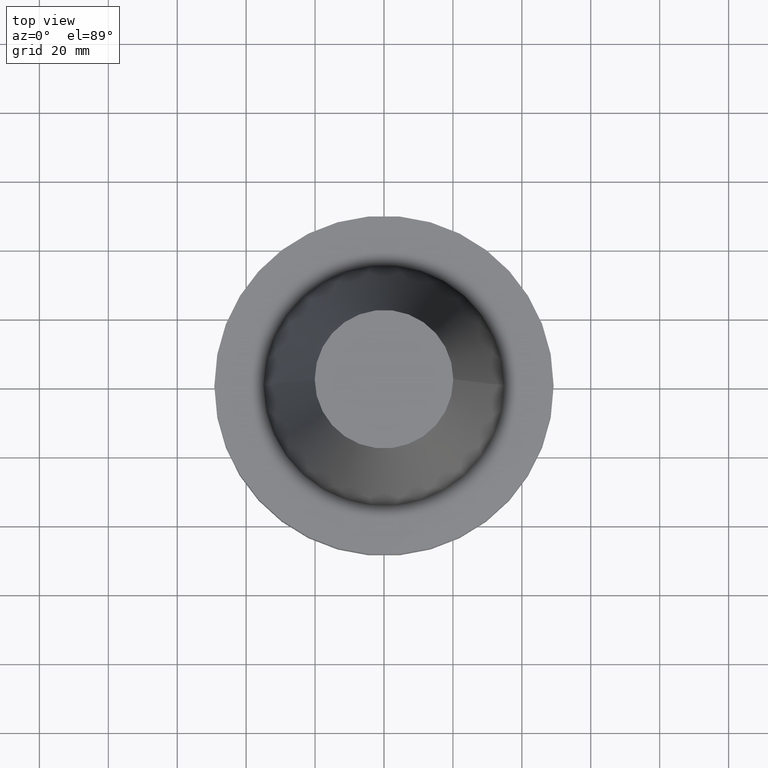
[diagram: clean part render]
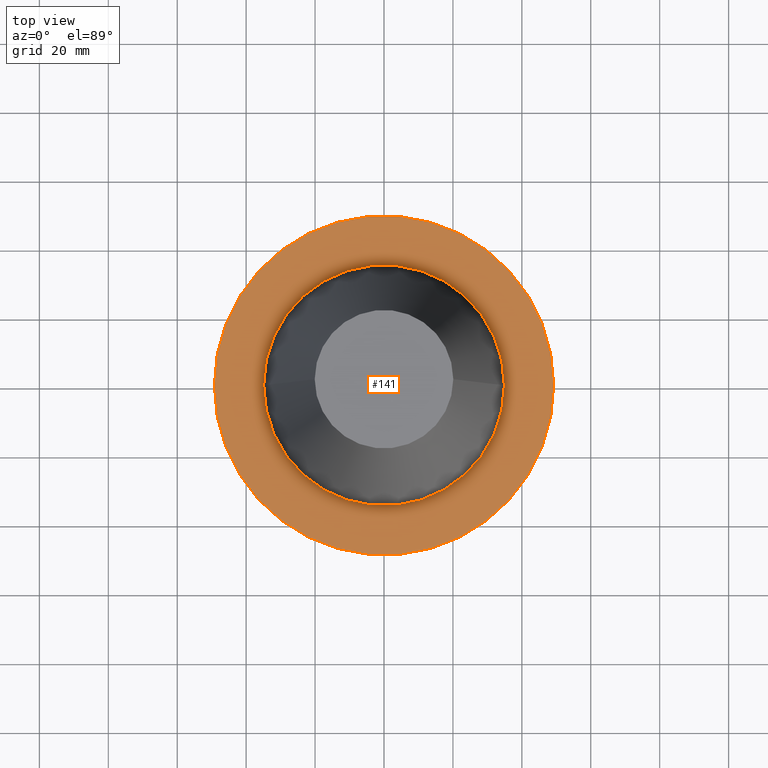
[diagram: same view with one face highlighted and labeled with its STEP entity id]
A machine part, top view. The second image highlights one B-rep face of the part: STEP entity #141.
In plain terms, the highlighted planar face has unit normal (0, 0, -1).
Its self-contained STEP definition (entity closure, byte-faithful):
#87 = ORIENTED_EDGE ( 'NONE', *, *, #400, .F. ) ;
#121 = AXIS2_PLACEMENT_3D ( 'NONE', #915, #1071, #318 ) ;
#122 = EDGE_CURVE ( 'NONE', #873, #187, #1017, .T. ) ;
#141 = ADVANCED_FACE ( 'NONE', ( #433, #447 ), #772, .F. ) ;
#157 = AXIS2_PLACEMENT_3D ( 'NONE', #917, #764, #407 ) ;
#187 = VERTEX_POINT ( 'NONE', #693 ) ;
#197 = VERTEX_POINT ( 'NONE', #971 ) ;
#230 = EDGE_LOOP ( 'NONE', ( #87, #842 ) ) ;
#263 = DIRECTION ( 'NONE',  ( -1.000000000000000000, 0.000000000000000000, -0.000000000000000000 ) ) ;
#312 = AXIS2_PLACEMENT_3D ( 'NONE', #932, #1029, #871 ) ;
#318 = DIRECTION ( 'NONE',  ( 1.000000000000000000, 0.000000000000000000, 0.000000000000000000 ) ) ;
#361 = EDGE_CURVE ( 'NONE', #799, #197, #704, .T. ) ;
#400 = EDGE_CURVE ( 'NONE', #197, #799, #689, .T. ) ;
#407 = DIRECTION ( 'NONE',  ( 1.000000000000000000, 0.000000000000000000, 0.000000000000000000 ) ) ;
#411 = DIRECTION ( 'NONE',  ( -0.000000000000000000, -0.000000000000000000, 1.000000000000000000 ) ) ;
#433 = FACE_BOUND ( 'NONE', #230, .T. ) ;
#447 = FACE_OUTER_BOUND ( 'NONE', #850, .T. ) ;
#450 = AXIS2_PLACEMENT_3D ( 'NONE', #784, #874, #263 ) ;
#663 = CARTESIAN_POINT ( 'NONE',  ( 0.000000000000000000, 0.000000000000000000, -1.499999999999987566 ) ) ;
#689 = CIRCLE ( 'NONE', #121, 34.92499999999999005 ) ;
#693 = CARTESIAN_POINT ( 'NONE',  ( 49.21499999999999631, 0.000000000000000000, -1.499999999999987566 ) ) ;
#704 = CIRCLE ( 'NONE', #758, 34.92499999999999005 ) ;
#758 = AXIS2_PLACEMENT_3D ( 'NONE', #663, #411, #996 ) ;
#764 = DIRECTION ( 'NONE',  ( -0.000000000000000000, -0.000000000000000000, 1.000000000000000000 ) ) ;
#772 = PLANE ( 'NONE',  #450 ) ;
#784 = CARTESIAN_POINT ( 'NONE',  ( 0.000000000000000000, 49.21499999999999631, -1.499999999999992895 ) ) ;
#799 = VERTEX_POINT ( 'NONE', #1062 ) ;
#842 = ORIENTED_EDGE ( 'NONE', *, *, #361, .F. ) ;
#850 = EDGE_LOOP ( 'NONE', ( #1012, #1022 ) ) ;
#856 = CARTESIAN_POINT ( 'NONE',  ( -49.21499999999999631, 6.027099222003697826E-15, -1.499999999999987566 ) ) ;
#871 = DIRECTION ( 'NONE',  ( 1.000000000000000000, 0.000000000000000000, 0.000000000000000000 ) ) ;
#873 = VERTEX_POINT ( 'NONE', #856 ) ;
#874 = DIRECTION ( 'NONE',  ( 0.000000000000000000, 0.000000000000000000, -1.000000000000000000 ) ) ;
#915 = CARTESIAN_POINT ( 'NONE',  ( 0.000000000000000000, 0.000000000000000000, -1.499999999999987566 ) ) ;
#917 = CARTESIAN_POINT ( 'NONE',  ( 0.000000000000000000, 0.000000000000000000, -1.499999999999987566 ) ) ;
#932 = CARTESIAN_POINT ( 'NONE',  ( 0.000000000000000000, 0.000000000000000000, -1.499999999999987566 ) ) ;
#953 = EDGE_CURVE ( 'NONE', #187, #873, #1037, .T. ) ;
#971 = CARTESIAN_POINT ( 'NONE',  ( 34.92499999999999005, 0.000000000000000000, -1.499999999999987566 ) ) ;
#996 = DIRECTION ( 'NONE',  ( 1.000000000000000000, 0.000000000000000000, 0.000000000000000000 ) ) ;
#1012 = ORIENTED_EDGE ( 'NONE', *, *, #953, .T. ) ;
#1017 = CIRCLE ( 'NONE', #312, 49.21499999999999631 ) ;
#1022 = ORIENTED_EDGE ( 'NONE', *, *, #122, .T. ) ;
#1029 = DIRECTION ( 'NONE',  ( -0.000000000000000000, -0.000000000000000000, 1.000000000000000000 ) ) ;
#1037 = CIRCLE ( 'NONE', #157, 49.21499999999999631 ) ;
#1062 = CARTESIAN_POINT ( 'NONE',  ( -34.92499999999999005, 4.277078946022130098E-15, -1.499999999999987566 ) ) ;
#1071 = DIRECTION ( 'NONE',  ( -0.000000000000000000, -0.000000000000000000, 1.000000000000000000 ) ) ;